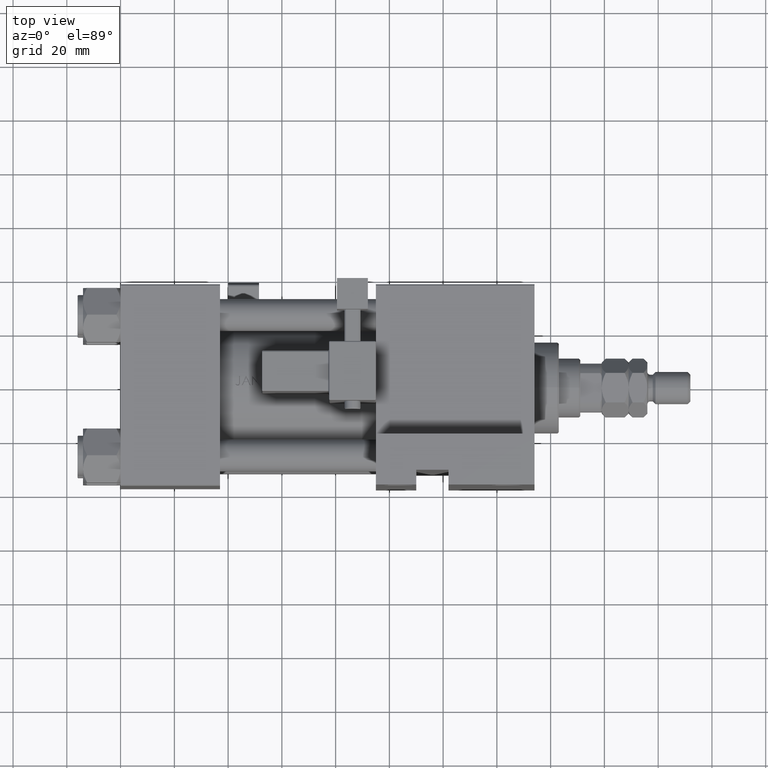
[diagram: clean part render]
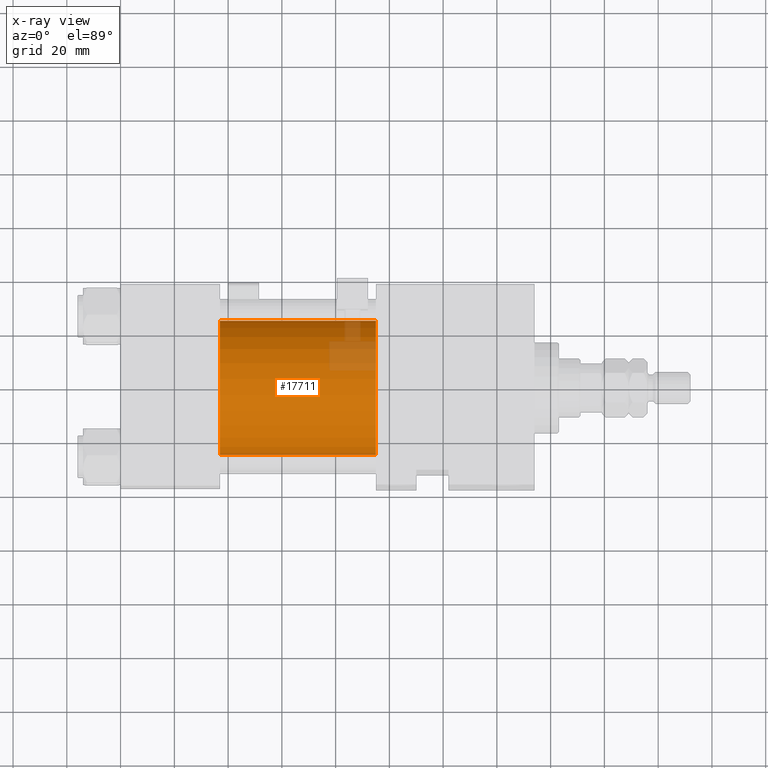
[diagram: x-ray — body ghosted, one internal face saturated and labeled with its STEP entity id]
A machine part, top view, then the same camera in x-ray: the body is ghosted and one INTERNAL B-rep face — a face not visible from any outside direction — is saturated and labeled: STEP entity #17711.
In plain terms, the highlighted cylindrical surface (partial cylindrical patch) has radius 25 mm, axis along (-1, -0, 0).
Its self-contained STEP definition (entity closure, byte-faithful):
#1596 = ORIENTED_EDGE ( 'NONE', *, *, #5223, .T. ) ;
#2374 = CARTESIAN_POINT ( 'NONE',  ( 95.00000000000000000, 3.122849337825749828E-15, -25.50000000000000355 ) ) ;
#2406 = DIRECTION ( 'NONE',  ( 0.000000000000000000, 0.000000000000000000, -1.000000000000000000 ) ) ;
#4321 = AXIS2_PLACEMENT_3D ( 'NONE', #22766, #38632, #26925 ) ;
#5223 = EDGE_CURVE ( 'NONE', #44491, #44423, #25615, .T. ) ;
#5873 = CARTESIAN_POINT ( 'NONE',  ( 95.00000000000000000, 3.122849337825749828E-15, -25.50000000000000355 ) ) ;
#6038 = DIRECTION ( 'NONE',  ( 1.000000000000000000, 0.000000000000000000, 0.000000000000000000 ) ) ;
#6874 = CARTESIAN_POINT ( 'NONE',  ( 95.00000000000000000, 6.123233995736772199E-17, -0.5000000000000004441 ) ) ;
#8048 = VERTEX_POINT ( 'NONE', #36215 ) ;
#8527 = ORIENTED_EDGE ( 'NONE', *, *, #31988, .T. ) ;
#8884 = EDGE_LOOP ( 'NONE', ( #8527, #1596, #33398, #16678 ) ) ;
#10773 = DIRECTION ( 'NONE',  ( -1.000000000000000000, -0.000000000000000000, -0.000000000000000000 ) ) ;
#14363 = DIRECTION ( 'NONE',  ( -1.000000000000000000, -0.000000000000000000, -0.000000000000000000 ) ) ;
#14814 = VECTOR ( 'NONE', #49195, 1000.000000000000000 ) ;
#15935 = VERTEX_POINT ( 'NONE', #40800 ) ;
#16678 = ORIENTED_EDGE ( 'NONE', *, *, #21097, .F. ) ;
#17200 = CARTESIAN_POINT ( 'NONE',  ( 37.00000000000000000, 6.123233995736772199E-17, -0.5000000000000004441 ) ) ;
#17711 = ADVANCED_FACE ( 'NONE', ( #39108 ), #30527, .F. ) ;
#17933 = EDGE_CURVE ( 'NONE', #15935, #44423, #45146, .T. ) ;
#18572 = AXIS2_PLACEMENT_3D ( 'NONE', #6874, #10773, #26628 ) ;
#21097 = EDGE_CURVE ( 'NONE', #8048, #15935, #37783, .T. ) ;
#21852 = CARTESIAN_POINT ( 'NONE',  ( 37.00000000000000000, 3.122849337825749828E-15, -25.50000000000000355 ) ) ;
#22766 = CARTESIAN_POINT ( 'NONE',  ( 95.00000000000000000, 6.123233995736772199E-17, -0.5000000000000004441 ) ) ;
#24230 = CIRCLE ( 'NONE', #4321, 25.00000000000000000 ) ;
#25615 = LINE ( 'NONE', #5873, #14814 ) ;
#26628 = DIRECTION ( 'NONE',  ( 0.000000000000000000, 0.000000000000000000, 1.000000000000000000 ) ) ;
#26925 = DIRECTION ( 'NONE',  ( 0.000000000000000000, 0.000000000000000000, -1.000000000000000000 ) ) ;
#29481 = VECTOR ( 'NONE', #14363, 1000.000000000000000 ) ;
#30527 = CYLINDRICAL_SURFACE ( 'NONE', #18572, 25.00000000000000000 ) ;
#31055 = AXIS2_PLACEMENT_3D ( 'NONE', #17200, #6038, #2406 ) ;
#31988 = EDGE_CURVE ( 'NONE', #8048, #44491, #24230, .T. ) ;
#33398 = ORIENTED_EDGE ( 'NONE', *, *, #17933, .F. ) ;
#36215 = CARTESIAN_POINT ( 'NONE',  ( 95.00000000000000000, 6.123233995736772199E-17, 24.50000000000000000 ) ) ;
#37783 = LINE ( 'NONE', #41674, #29481 ) ;
#38632 = DIRECTION ( 'NONE',  ( 1.000000000000000000, 0.000000000000000000, 0.000000000000000000 ) ) ;
#39108 = FACE_OUTER_BOUND ( 'NONE', #8884, .T. ) ;
#40800 = CARTESIAN_POINT ( 'NONE',  ( 37.00000000000000000, 6.123233995736772199E-17, 24.50000000000000000 ) ) ;
#41674 = CARTESIAN_POINT ( 'NONE',  ( 95.00000000000000000, 6.123233995736772199E-17, 24.50000000000000000 ) ) ;
#44423 = VERTEX_POINT ( 'NONE', #21852 ) ;
#44491 = VERTEX_POINT ( 'NONE', #2374 ) ;
#45146 = CIRCLE ( 'NONE', #31055, 25.00000000000000000 ) ;
#49195 = DIRECTION ( 'NONE',  ( -1.000000000000000000, -0.000000000000000000, -0.000000000000000000 ) ) ;